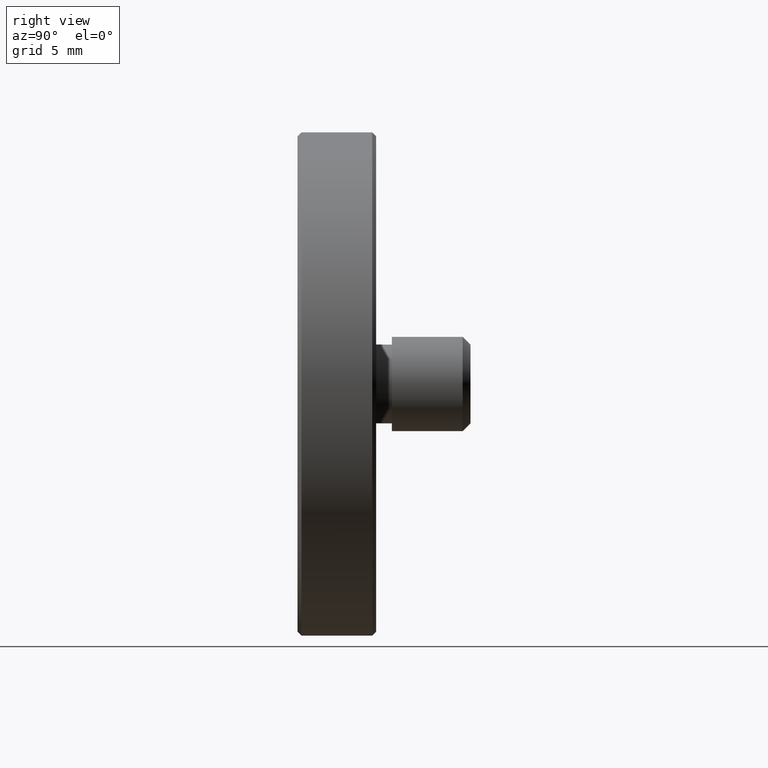
[diagram: clean part render]
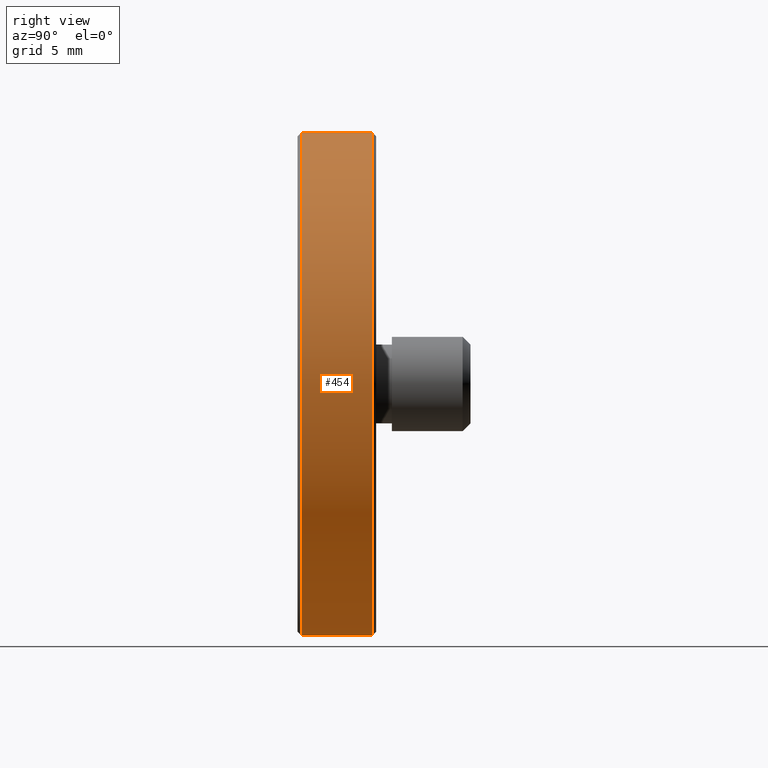
[diagram: same view with one face highlighted and labeled with its STEP entity id]
A machine part, right view. The second image highlights one B-rep face of the part: STEP entity #454.
In plain terms, the highlighted cylindrical surface (partial cylindrical patch) has radius 16 mm, axis along (-0, -1, -0).
Its self-contained STEP definition (entity closure, byte-faithful):
#15 = DIRECTION ( 'NONE',  ( -0.000000000000000000, -1.000000000000000000, -0.000000000000000000 ) ) ;
#19 = CARTESIAN_POINT ( 'NONE',  ( 1.959434878635765131E-15, 4.750000000000000000, 16.00000000000000000 ) ) ;
#50 = CARTESIAN_POINT ( 'NONE',  ( 0.000000000000000000, 4.750000000000000000, 0.000000000000000000 ) ) ;
#67 = DIRECTION ( 'NONE',  ( 0.000000000000000000, 0.000000000000000000, -1.000000000000000000 ) ) ;
#77 = EDGE_CURVE ( 'NONE', #259, #160, #338, .T. ) ;
#84 = CARTESIAN_POINT ( 'NONE',  ( 0.000000000000000000, 0.2499999999999967526, -16.00000000000000000 ) ) ;
#105 = DIRECTION ( 'NONE',  ( 0.000000000000000000, 0.000000000000000000, 1.000000000000000000 ) ) ;
#130 = CARTESIAN_POINT ( 'NONE',  ( 0.000000000000000000, 4.750000000000000000, -16.00000000000000000 ) ) ;
#134 = FACE_OUTER_BOUND ( 'NONE', #797, .T. ) ;
#138 = CARTESIAN_POINT ( 'NONE',  ( 0.000000000000000000, 5.000000000000000000, -16.00000000000000000 ) ) ;
#160 = VERTEX_POINT ( 'NONE', #303 ) ;
#167 = DIRECTION ( 'NONE',  ( 0.000000000000000000, 0.000000000000000000, 1.000000000000000000 ) ) ;
#169 = DIRECTION ( 'NONE',  ( 0.000000000000000000, -1.000000000000000000, 0.000000000000000000 ) ) ;
#196 = CYLINDRICAL_SURFACE ( 'NONE', #729, 16.00000000000000000 ) ;
#206 = DIRECTION ( 'NONE',  ( -0.000000000000000000, -1.000000000000000000, -0.000000000000000000 ) ) ;
#227 = EDGE_CURVE ( 'NONE', #512, #259, #831, .T. ) ;
#235 = CARTESIAN_POINT ( 'NONE',  ( 0.000000000000000000, 0.2499999999999967526, 0.000000000000000000 ) ) ;
#259 = VERTEX_POINT ( 'NONE', #19 ) ;
#299 = VERTEX_POINT ( 'NONE', #84 ) ;
#303 = CARTESIAN_POINT ( 'NONE',  ( 1.959434878635765131E-15, 0.2499999999999967526, 16.00000000000000000 ) ) ;
#338 = LINE ( 'NONE', #543, #656 ) ;
#396 = CIRCLE ( 'NONE', #522, 16.00000000000000000 ) ;
#402 = EDGE_CURVE ( 'NONE', #512, #299, #535, .T. ) ;
#454 = ADVANCED_FACE ( 'NONE', ( #134 ), #196, .T. ) ;
#463 = CARTESIAN_POINT ( 'NONE',  ( 0.000000000000000000, 5.000000000000000000, 0.000000000000000000 ) ) ;
#473 = DIRECTION ( 'NONE',  ( -0.000000000000000000, -1.000000000000000000, -0.000000000000000000 ) ) ;
#512 = VERTEX_POINT ( 'NONE', #130 ) ;
#522 = AXIS2_PLACEMENT_3D ( 'NONE', #235, #825, #167 ) ;
#535 = LINE ( 'NONE', #138, #795 ) ;
#543 = CARTESIAN_POINT ( 'NONE',  ( 1.959434878635765131E-15, 5.000000000000000000, 16.00000000000000000 ) ) ;
#552 = EDGE_CURVE ( 'NONE', #160, #299, #396, .T. ) ;
#565 = ORIENTED_EDGE ( 'NONE', *, *, #552, .T. ) ;
#582 = ORIENTED_EDGE ( 'NONE', *, *, #227, .T. ) ;
#656 = VECTOR ( 'NONE', #473, 1000.000000000000000 ) ;
#685 = ORIENTED_EDGE ( 'NONE', *, *, #77, .T. ) ;
#729 = AXIS2_PLACEMENT_3D ( 'NONE', #463, #15, #67 ) ;
#762 = AXIS2_PLACEMENT_3D ( 'NONE', #50, #169, #105 ) ;
#795 = VECTOR ( 'NONE', #206, 1000.000000000000000 ) ;
#797 = EDGE_LOOP ( 'NONE', ( #582, #685, #565, #828 ) ) ;
#825 = DIRECTION ( 'NONE',  ( -0.000000000000000000, 1.000000000000000000, -0.000000000000000000 ) ) ;
#828 = ORIENTED_EDGE ( 'NONE', *, *, #402, .F. ) ;
#831 = CIRCLE ( 'NONE', #762, 16.00000000000000000 ) ;